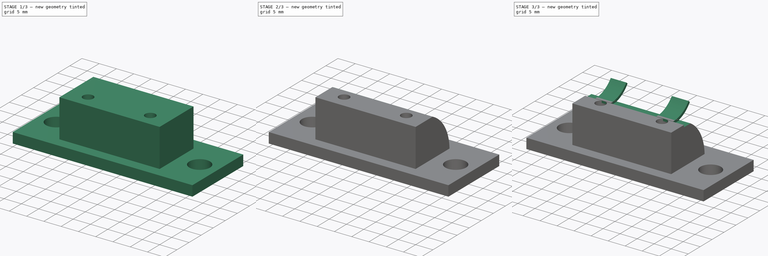
[diagram: build sequence overview — one tinted view per stage of 3, left to right]
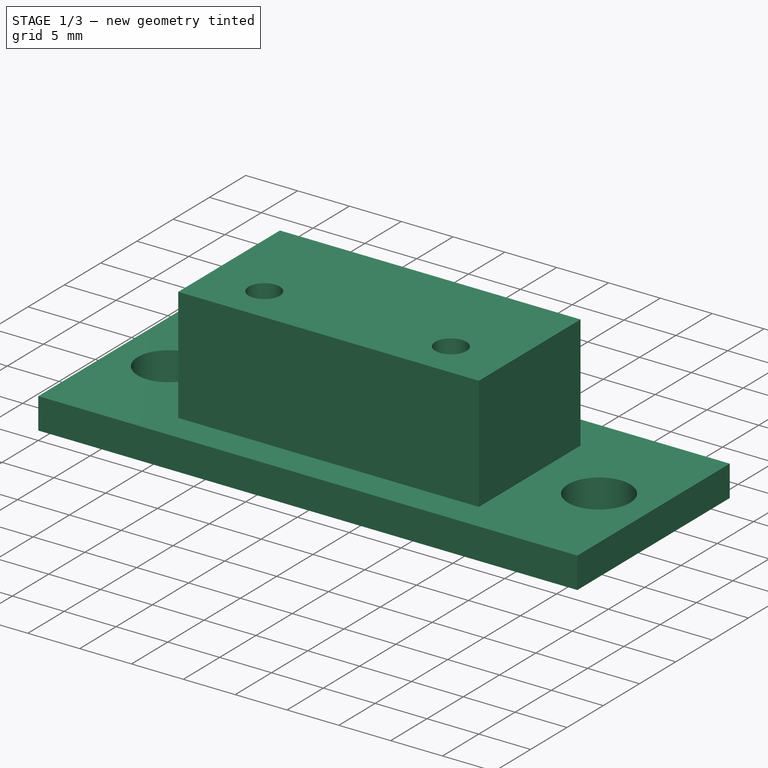
[diagram: stage 1 of 3 — iso view after this stage's code; geometry added in this stage tinted green]
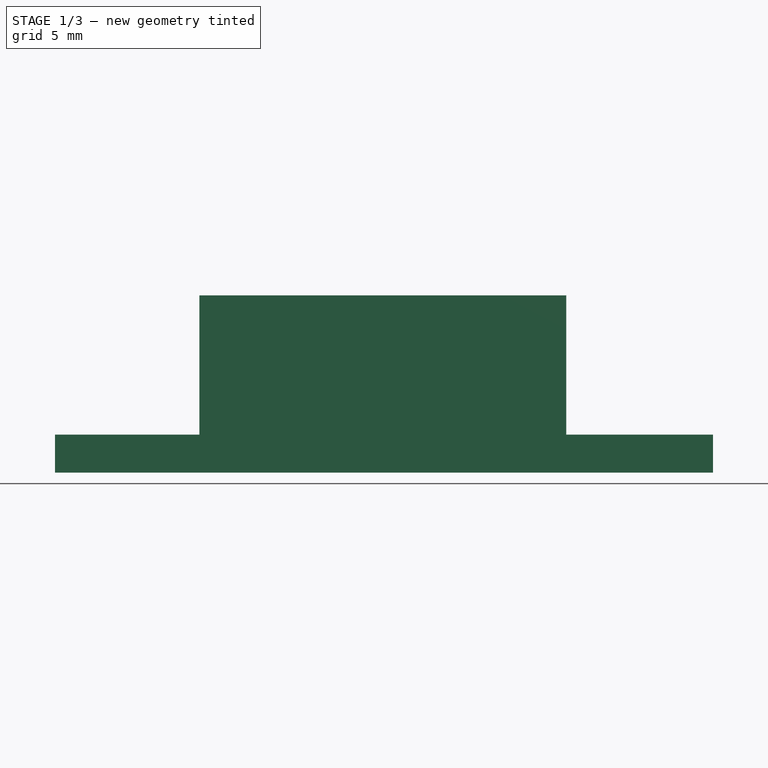
[diagram: stage 1 of 3 — front view after this stage's code; geometry added in this stage tinted green]
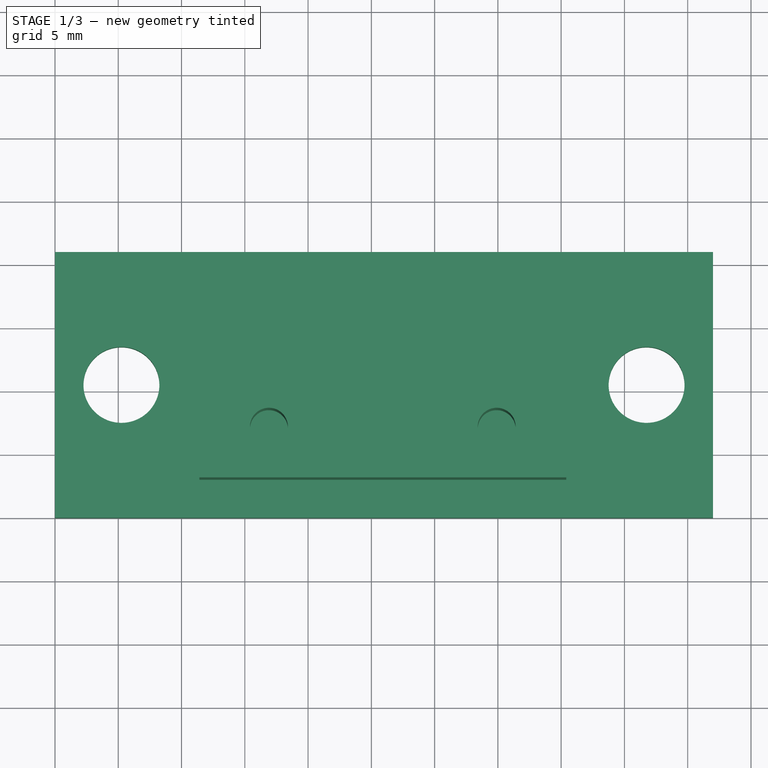
[diagram: stage 1 of 3 — top view after this stage's code; geometry added in this stage tinted green]
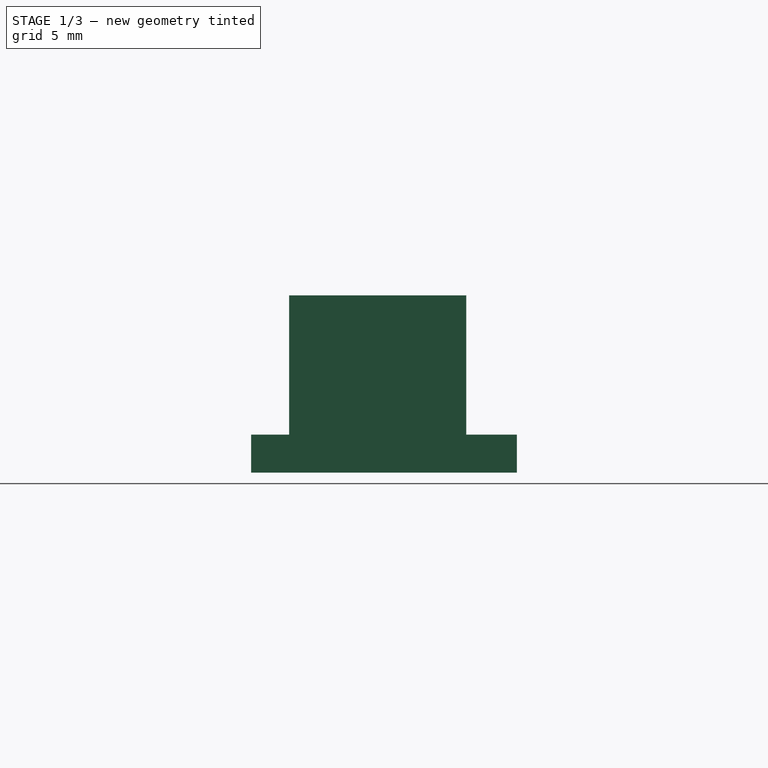
[diagram: stage 1 of 3 — right view after this stage's code; geometry added in this stage tinted green]
FCSTD DOCUMENT  (FreeCAD 0.16R6703 (Git))
Label: speaker_terminal
License: All rights reserved
LicenseURL: http://en.wikipedia.org/wiki/All_rights_reserved
objects: Sketcher::SketchObject×5, PartDesign::Pad×3, PartDesign::Pocket×2
note: 15 computed .brp shape members not serialized (recipe doc carries the construction recipe); baked Part::Feature solids carry a one-line shape summary decoded from their .brp

FEATURE [Sketcher::SketchObject] Sketch
  sketch-geometry (8):
    g0: LineSegment StartX=0 StartY=0 StartZ=0 EndX=52 EndY=0 EndZ=0
    g1: LineSegment StartX=52 StartY=0 StartZ=0 EndX=52 EndY=21 EndZ=0
    g2: LineSegment StartX=52 StartY=21 StartZ=0 EndX=0 EndY=21 EndZ=0
    g3: LineSegment StartX=0 StartY=21 StartZ=0 EndX=0 EndY=0 EndZ=0
    g4: Circle CenterX=5.25 CenterY=10.5 CenterZ=0 NormalX=0 NormalY=0 NormalZ=1 Radius=3
    g5: Circle CenterX=46.75 CenterY=10.4985 CenterZ=0 NormalX=0 NormalY=0 NormalZ=1 Radius=3
    g6: LineSegment [constr] StartX=46.75 StartY=10.4985 StartZ=0 EndX=52 EndY=10.4985 EndZ=0
    g7: LineSegment [constr] StartX=0 StartY=10.5 StartZ=0 EndX=5.25 EndY=10.5 EndZ=0
  constraints (21):
    c: Coincident(g0,g1)
    c: Coincident(g1,g2)
    c: Coincident(g2,g3)
    c: Coincident(g3,g0)
    c: Horizontal(g0)
    c: Horizontal(g2)
    c: Vertical(g1)
    c: Vertical(g3)
    c: Coincident(g0,g-1)
    c: Distance(g2) = 52
    c: Distance(g1) = 21
    c: PointOnObject(g6,g1)
    c: DistanceX(g4,g5) = 41.5
    c: Equal(g4,g5)
    c: Radius(g5) = 3
    c: Coincident(g6,g5)
    c: Horizontal(g6)
    c: Coincident(g7,g4)
    c: Horizontal(g7)
    c: Symmetric(g3,g3,g7)
    c: Equal(g7,g6)
FEATURE [PartDesign::Pad] Pad
  Length = 3
  Length2 = 100
  Sketch = -> Sketch
  Type = 0
FEATURE [Sketcher::SketchObject] Sketch001
  ExternalGeometry = -> [Pad]
  Placement = pos=(0,0,3) rot=(0,0,1;0rad)
  Support = -> Pad [Face8]
  sketch-geometry (10):
    g0: LineSegment StartX=11.4065 StartY=17 StartZ=0 EndX=40.4065 EndY=17 EndZ=0
    g1: LineSegment StartX=40.4065 StartY=17 StartZ=0 EndX=40.4065 EndY=3 EndZ=0
    g2: LineSegment StartX=40.4065 StartY=3 StartZ=0 EndX=11.4065 EndY=3 EndZ=0
    g3: LineSegment StartX=11.4065 StartY=3 StartZ=0 EndX=11.4065 EndY=17 EndZ=0
    g4: LineSegment [constr] StartX=11.4065 StartY=6.47805 StartZ=0 EndX=-0.186948 EndY=6.47805 EndZ=0
    g5: LineSegment [constr] StartX=40.4065 StartY=6.02264 StartZ=0 EndX=52 EndY=6.02264 EndZ=0
    g6: Circle CenterX=16.9065 CenterY=7 CenterZ=0 NormalX=0 NormalY=0 NormalZ=1 Radius=1.5
    g7: Circle CenterX=34.9065 CenterY=7 CenterZ=0 NormalX=0 NormalY=0 NormalZ=1 Radius=1.5
    g8: LineSegment [constr] StartX=34.9065 StartY=7 StartZ=0 EndX=40.4065 EndY=7 EndZ=0
    g9: LineSegment [constr] StartX=16.9065 StartY=7 StartZ=0 EndX=11.4065 EndY=7 EndZ=0
  constraints (29):
    c: Coincident(g0,g1)
    c: Coincident(g1,g2)
    c: Coincident(g2,g3)
    c: Coincident(g3,g0)
    c: Horizontal(g0)
    c: Horizontal(g2)
    c: Vertical(g1)
    c: Vertical(g3)
    c: Distance(g1) = 14
    c: Distance(g2) = 29
    c: DistanceY(g-1,g2) = 3
    c: PointOnObject(g4,g3)
    c: Horizontal(g4)
    c: PointOnObject(g5,g1)
    c: PointOnObject(g5,g-4)
    c: Horizontal(g5)
    c: Equal(g5,g4)
    c: Equal(g7,g6)
    c: Radius(g6) = 1.5
    c: DistanceX(g6,g7) = 18
    c: Coincident(g8,g7)
    c: Horizontal(g8)
    c: PointOnObject(g8,g1)
    c: DistanceY(g6,g7) = 0
    c: Coincident(g9,g6)
    c: PointOnObject(g9,g3)
    c: Horizontal(g9)
    c: Equal(g9,g8)
    c: DistanceY(g2,g9) = 4
FEATURE [PartDesign::Pad] Pad001
  Length = 11
  Length2 = 100
  Sketch = -> Sketch001
  Type = 0
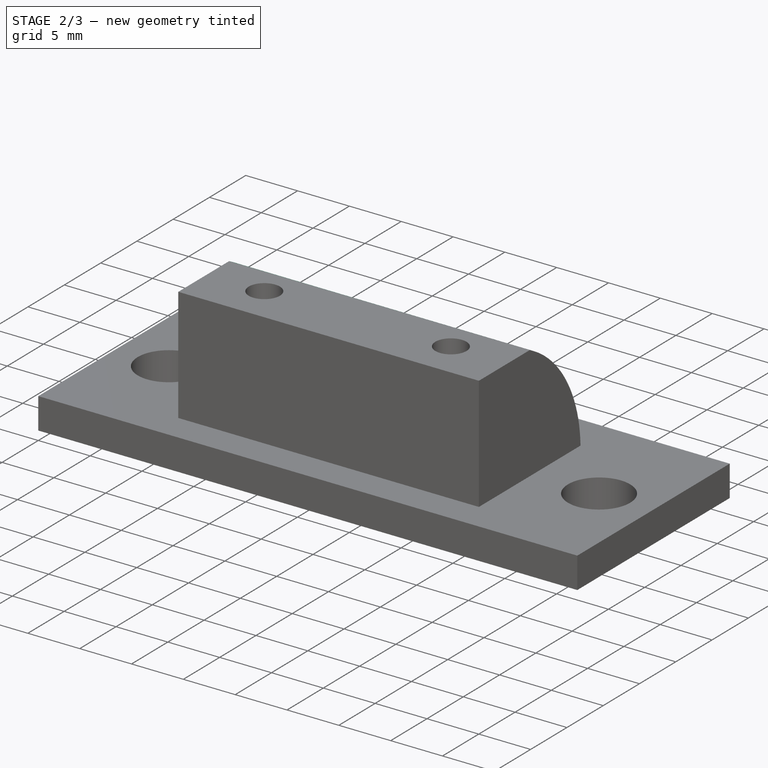
[diagram: stage 2 of 3 — iso view after this stage's code; geometry added in this stage tinted green]
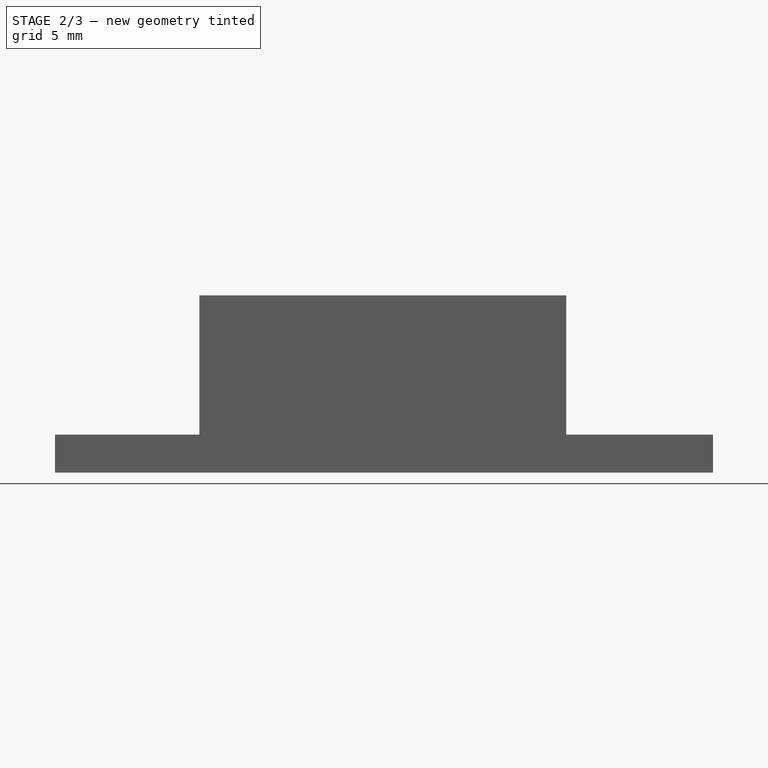
[diagram: stage 2 of 3 — front view after this stage's code; geometry added in this stage tinted green]
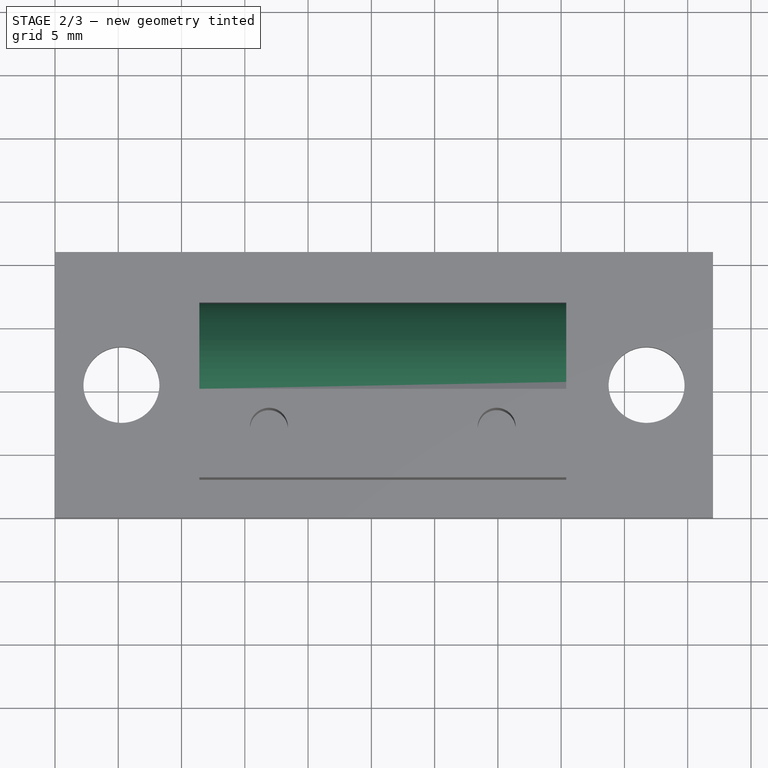
[diagram: stage 2 of 3 — top view after this stage's code; geometry added in this stage tinted green]
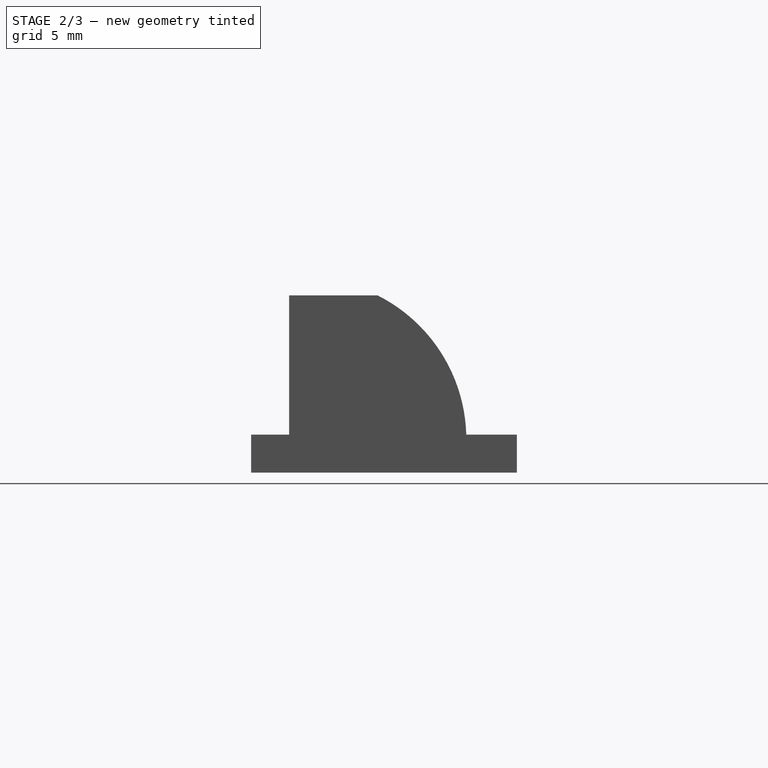
[diagram: stage 2 of 3 — right view after this stage's code; geometry added in this stage tinted green]
FEATURE [Sketcher::SketchObject] Sketch002
  ExternalGeometry = -> [Pad001]
  Placement = pos=(40.4065,0,0) rot=(0.57735,0.57735,0.57735;2.0944rad)
  Support = -> Pad001 [Face10]
  sketch-geometry (3):
    g0: ArcOfCircle CenterX=4.27486 CenterY=2.62787 CenterZ=0 NormalX=0 NormalY=0 NormalZ=1 Radius=12.732 StartAngle=0.0327122 EndAngle=1.1044
    g1: LineSegment StartX=10 StartY=14 StartZ=0 EndX=17 EndY=14 EndZ=0
    g2: LineSegment StartX=17 StartY=14 StartZ=0 EndX=17 EndY=3.04429 EndZ=0
  constraints (7):
    c: Coincident(g1,g-5)
    c: Horizontal(g1)
    c: Coincident(g2,g1)
    c: Coincident(g2,g0)
    c: Vertical(g2)
    c: Distance(g1) = 7
    c: Coincident(g0,g1)
FEATURE [PartDesign::Pocket] Pocket
  Length = 100
  Sketch = -> Sketch002
  Type = 0
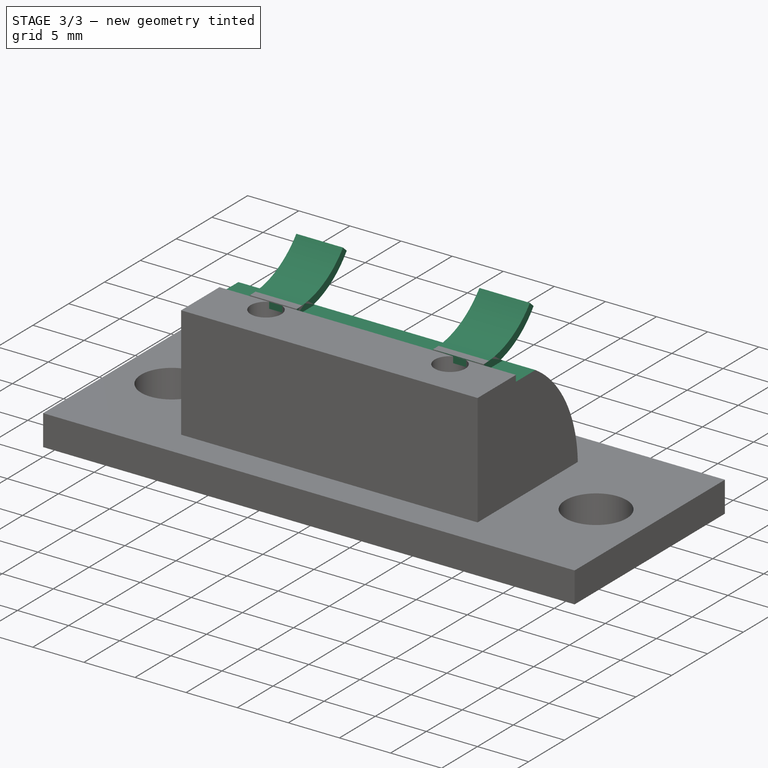
[diagram: stage 3 of 3 — iso view after this stage's code; geometry added in this stage tinted green]
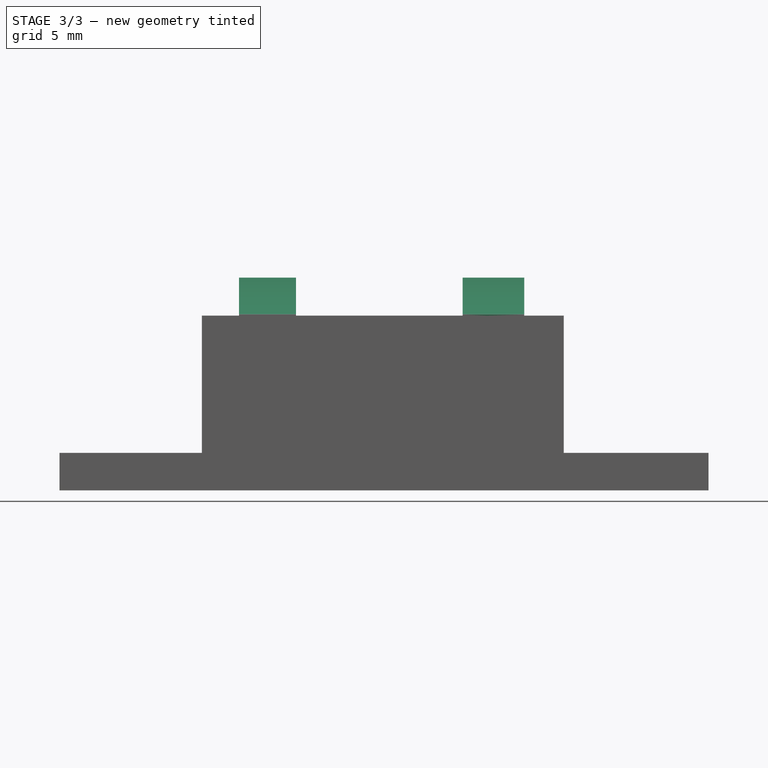
[diagram: stage 3 of 3 — front view after this stage's code; geometry added in this stage tinted green]
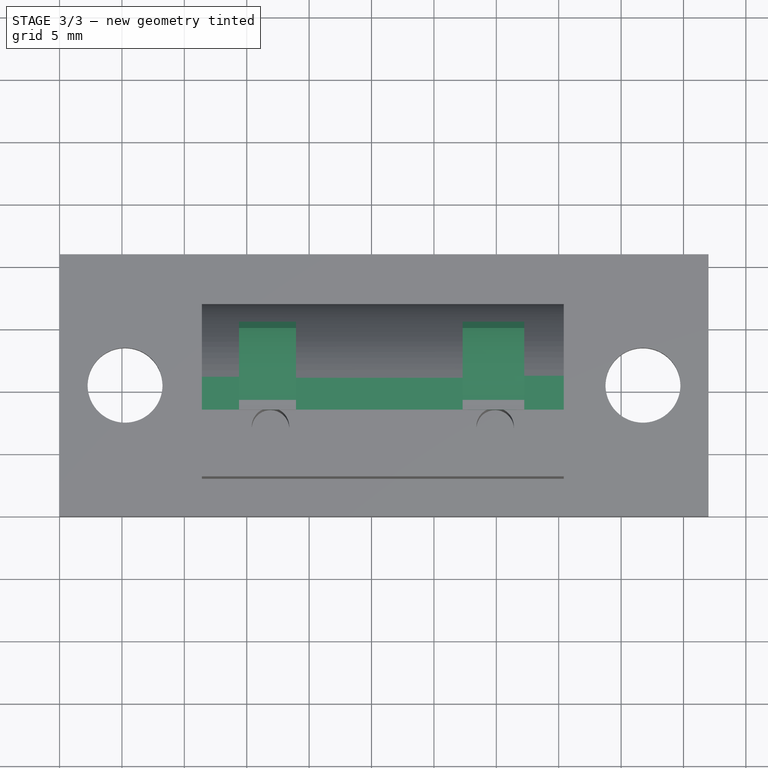
[diagram: stage 3 of 3 — top view after this stage's code; geometry added in this stage tinted green]
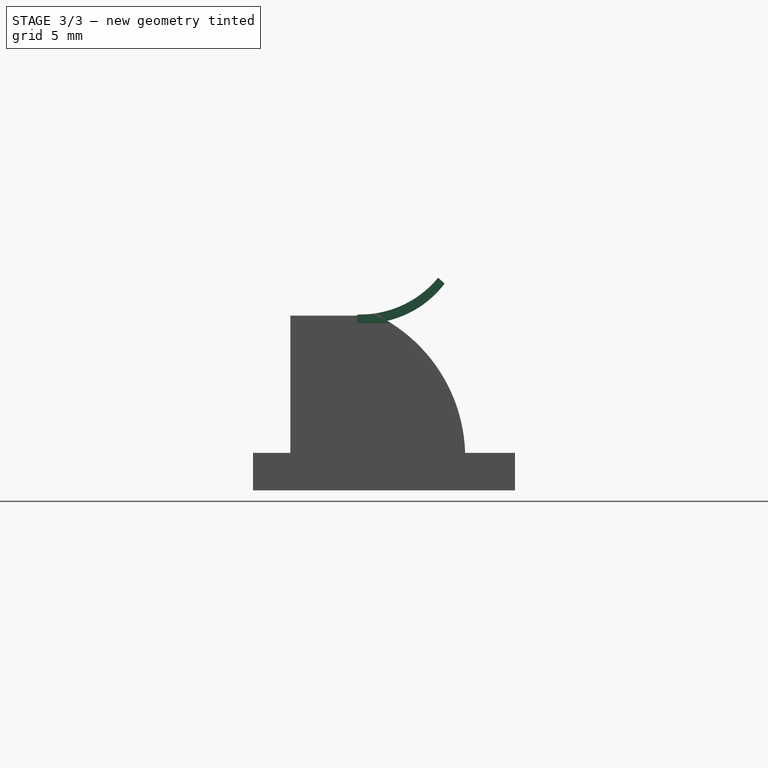
[diagram: stage 3 of 3 — right view after this stage's code; geometry added in this stage tinted green]
FEATURE [Sketcher::SketchObject] Sketch003
  Placement = pos=(40.4065,0,0) rot=(0.57735,0.57735,0.57735;2.0944rad)
  Support = -> Pocket [Face10]
  sketch-geometry (4):
    g0: LineSegment StartX=8.35433 StartY=14.0916 StartZ=0 EndX=8.35433 EndY=13.3916 EndZ=0
    g1: ArcOfCircle CenterX=8.58728 CenterY=22.1846 CenterZ=0 NormalX=0 NormalY=0 NormalZ=1 Radius=8.09633 StartAngle=4.68361 EndAngle=5.59492
    g2: ArcOfCircle CenterX=8.92816 CenterY=21.4307 CenterZ=0 NormalX=0 NormalY=0 NormalZ=1 Radius=8.05958 StartAngle=4.64113 EndAngle=5.63525
    g3: LineSegment StartX=14.8405 StartY=17.0418 StartZ=0 EndX=15.3543 EndY=16.5665 EndZ=0
  constraints (8):
    c: Vertical(g0)
    c: Coincident(g3,g1)
    c: Coincident(g3,g2)
    c: Distance(g0) = 0.7
    c: Distance(g3) = 0.7
    c: DistanceX(g0,g2) = 7
    c: Coincident(g0,g1)
    c: Coincident(g0,g2)
FEATURE [PartDesign::Pad] Pad002
  Length = 29
  Length2 = 100
  Reversed = true
  Sketch = -> Sketch003
  Type = 0
FEATURE [Sketcher::SketchObject] Sketch004
  Placement = pos=(0,8.35433,0) rot=(1,0,0;1.5708rad)
  Support = -> Pad002 [Face18]
  sketch-geometry (12):
    g0: LineSegment StartX=40.7411 StartY=17.9534 StartZ=0 EndX=37.2349 EndY=17.9534 EndZ=0
    g1: LineSegment StartX=37.2349 StartY=17.9534 StartZ=0 EndX=37.2349 EndY=13.392 EndZ=0
    g2: LineSegment StartX=37.2349 StartY=13.392 StartZ=0 EndX=40.7411 EndY=13.392 EndZ=0
    g3: LineSegment StartX=40.7411 StartY=13.392 StartZ=0 EndX=40.7411 EndY=17.9534 EndZ=0
    g4: LineSegment StartX=32.296 StartY=18.8798 StartZ=0 EndX=18.9524 EndY=18.8798 EndZ=0
    g5: LineSegment StartX=18.9524 StartY=18.8798 StartZ=0 EndX=18.9524 EndY=13.4943 EndZ=0
    g6: LineSegment StartX=18.9524 StartY=13.4943 StartZ=0 EndX=32.296 EndY=13.4943 EndZ=0
    g7: LineSegment StartX=32.296 StartY=13.4943 StartZ=0 EndX=32.296 EndY=18.8798 EndZ=0
    g8: LineSegment StartX=14.3854 StartY=17.6158 StartZ=0 EndX=11.0702 EndY=17.6158 EndZ=0
    g9: LineSegment StartX=11.0702 StartY=17.6158 StartZ=0 EndX=11.0702 EndY=13.4431 EndZ=0
    g10: LineSegment StartX=11.0702 StartY=13.4431 StartZ=0 EndX=14.3854 EndY=13.4431 EndZ=0
    g11: LineSegment StartX=14.3854 StartY=13.4431 StartZ=0 EndX=14.3854 EndY=17.6158 EndZ=0
  constraints (24):
    c: Coincident(g0,g1)
    c: Coincident(g1,g2)
    c: Coincident(g2,g3)
    c: Coincident(g3,g0)
    c: Horizontal(g0)
    c: Horizontal(g2)
    c: Vertical(g1)
    c: Vertical(g3)
    c: Coincident(g4,g5)
    c: Coincident(g5,g6)
    c: Coincident(g6,g7)
    c: Coincident(g7,g4)
    c: Horizontal(g4)
    c: Horizontal(g6)
    c: Vertical(g5)
    c: Vertical(g7)
    c: Coincident(g8,g9)
    c: Coincident(g9,g10)
    c: Coincident(g10,g11)
    c: Coincident(g11,g8)
    c: Horizontal(g8)
    c: Horizontal(g10)
    c: Vertical(g9)
    c: Vertical(g11)
FEATURE [PartDesign::Pocket] Pocket001
  Length = 7
  Sketch = -> Sketch004
  Type = 0
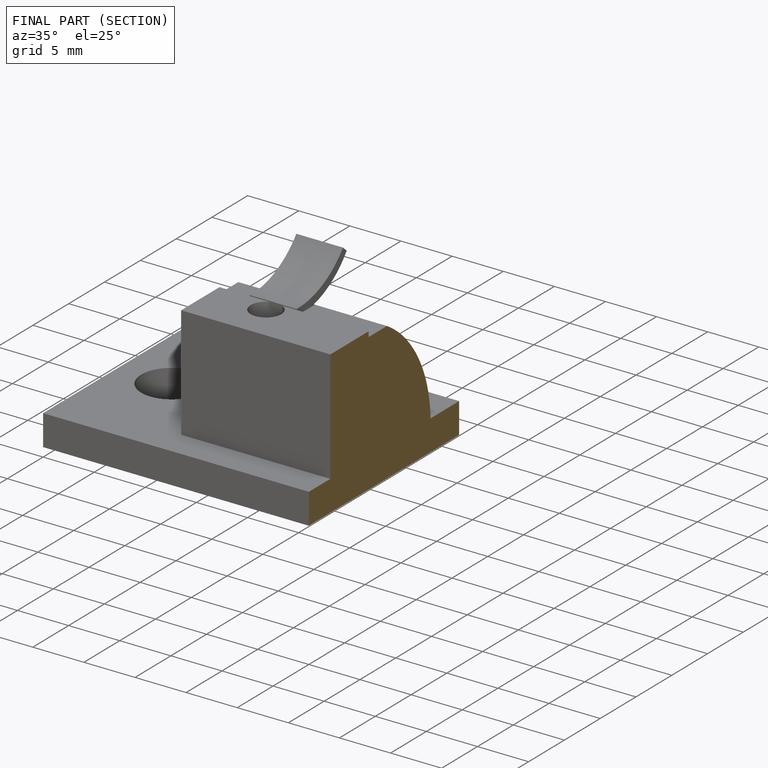
[diagram: finished part — half-section view (interior)]
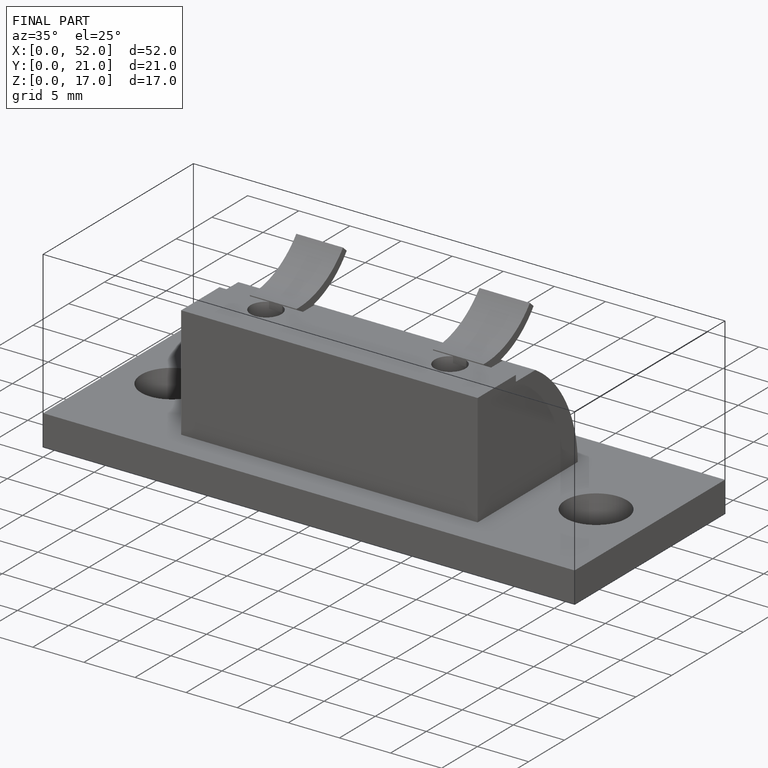
[diagram: finished part — iso view with bounding-box wireframe]
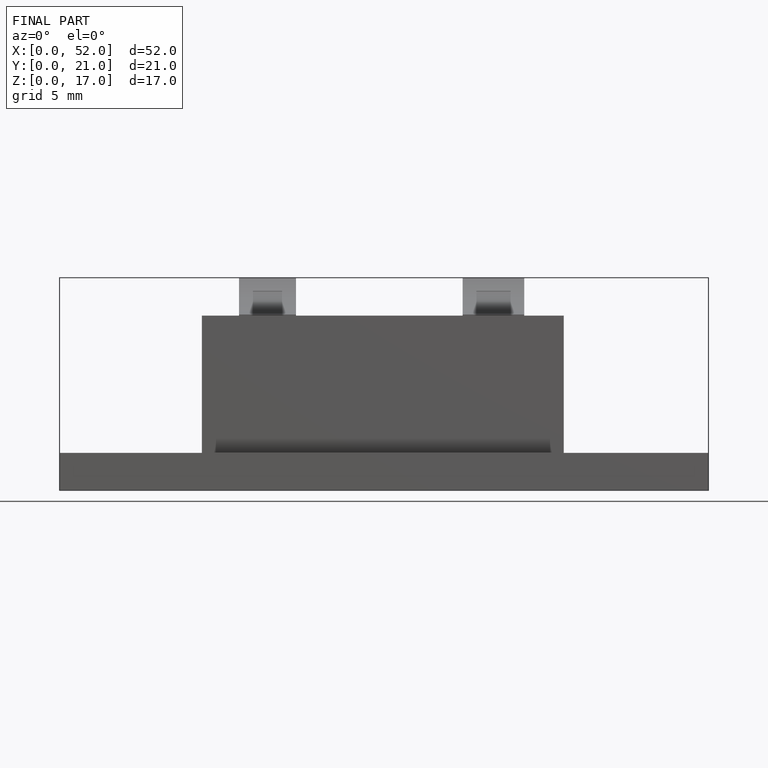
[diagram: finished part — front view with bounding-box wireframe]
